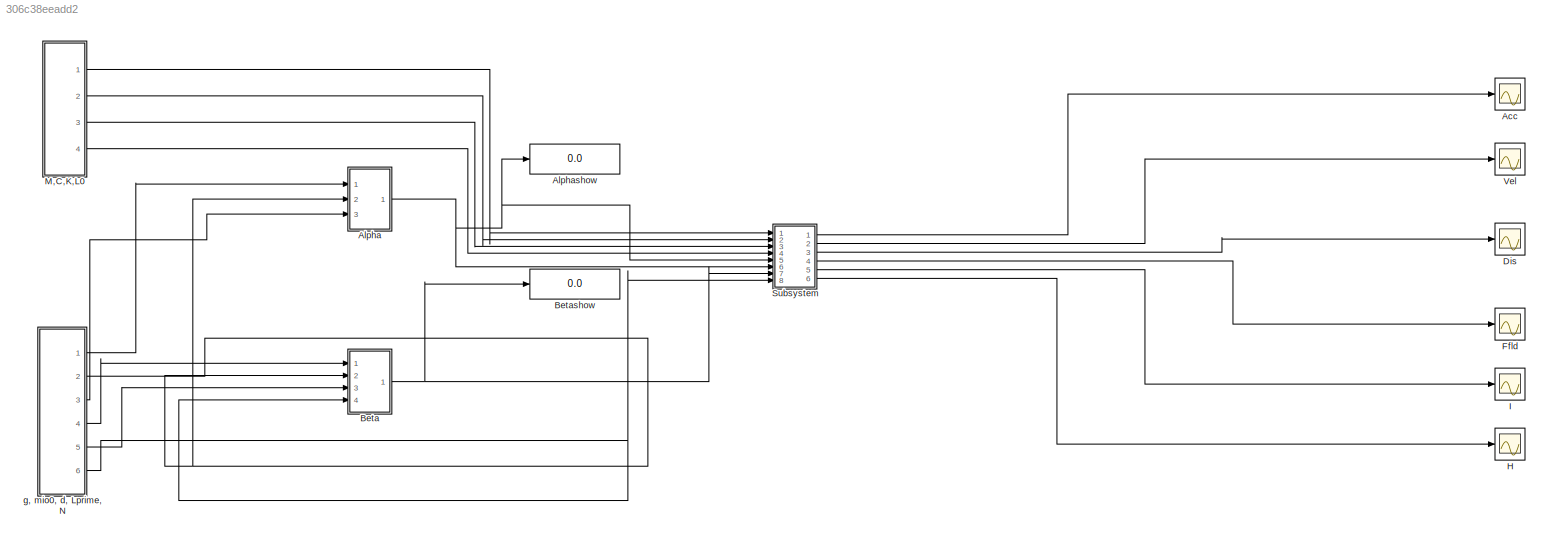
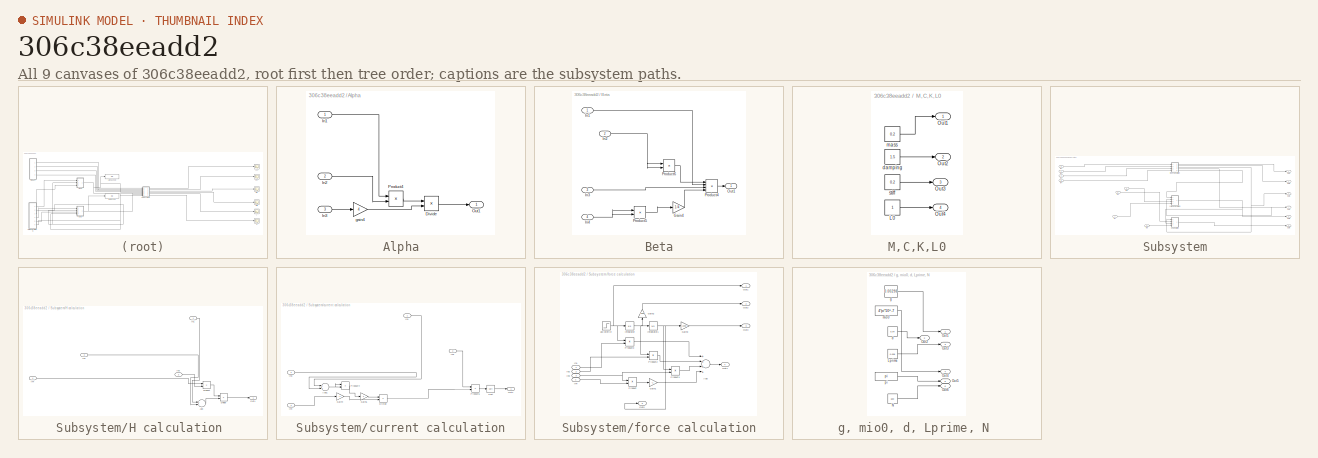
[diagram: thumbnail index - all 9 canvases of the model, root first then tree order]
MODEL slx_306c38eeadd2
KIND model
CONFIG AbsTol = auto
CONFIG EnableMultiTasking = off
CONFIG FixedStep = auto
CONFIG MaxStep = auto
CONFIG MinStep = auto
CONFIG RelTol = 1e-3
CONFIG SampleTimeConstraint = Unconstrained
CONFIG Solver = VariableStepAuto
CONFIG SolverName = VariableStepAuto
CONFIG StartTime = 0.0
CONFIG StopTime = 0.2
BLOCK [Scope] Acc
  Floating = off
  NumInputPorts = 1
  Ports = [1]
  ScopeSpecificationString = Simulink.scopes.TimeScopeBlockCfg('CurrentConfiguration', extmgr.ConfigurationSet(extmgr.Configuration('Core','General UI',true),extmgr.Configuration('Core','Source UI',true),extmgr.Configuration('Sources','WiredSimulink',true,'DataLoggingVariableName','ScopeData2'),extmgr.Configuration('Visuals','Time Domain',true,'SerializedDisplays',{struct('MinYLimReal','-1.25','MaxYLimReal','1.25','YLabelReal...<+1360ch>
BLOCK [SubSystem] Alpha
  Ports = [3, 1]
  RequestExecContextInheritance = off
BLOCK [Product] Alpha/Divide
  InputSameDT = off
  Inputs = */
  OutDataTypeStr = Inherit: Inherit via internal rule
  Ports = [2, 1]
  RndMeth = Floor
  SaturateOnIntegerOverflow = off
BLOCK [Inport] Alpha/In1
  IconDisplay = Port number
BLOCK [Inport] Alpha/In2
  IconDisplay = Port number
  Port = 2
BLOCK [Inport] Alpha/In3
  IconDisplay = Port number
  Port = 3
BLOCK [Outport] Alpha/Out1
  IconDisplay = Port number
BLOCK [Product] Alpha/Product4
  InputSameDT = off
  OutDataTypeStr = Inherit: Inherit via internal rule
  Ports = [2, 1]
  RndMeth = Floor
  SaturateOnIntegerOverflow = off
BLOCK [Gain] Alpha/gain4 
  Gain = 4
  OutDataTypeStr = Inherit: Inherit via internal rule
  ParamDataTypeStr = Inherit: Inherit via internal rule
  SaturateOnIntegerOverflow = off
BLOCK [Display] Alphashow
  Decimation = 1
  Ports = [1]
BLOCK [SubSystem] Beta
  Ports = [4, 1]
  RequestExecContextInheritance = off
BLOCK [Gain] Beta/Gain4
  Gain = 1/4
  OutDataTypeStr = Inherit: Inherit via internal rule
  ParamDataTypeStr = Inherit: Inherit via internal rule
  SaturateOnIntegerOverflow = off
BLOCK [Inport] Beta/In1
  IconDisplay = Port number
BLOCK [Inport] Beta/In2
  IconDisplay = Port number
  Port = 2
BLOCK [Inport] Beta/In3
  IconDisplay = Port number
  Port = 3
BLOCK [Inport] Beta/In4
  IconDisplay = Port number
  Port = 4
BLOCK [Outport] Beta/Out1
  IconDisplay = Port number
BLOCK [Product] Beta/Product4
  InputSameDT = off
  Inputs = 4
  OutDataTypeStr = Inherit: Inherit via internal rule
  Ports = [4, 1]
  RndMeth = Floor
  SaturateOnIntegerOverflow = off
BLOCK [Product] Beta/Product5
  InputSameDT = off
  OutDataTypeStr = Inherit: Inherit via internal rule
  Ports = [2, 1]
  RndMeth = Floor
  SaturateOnIntegerOverflow = off
BLOCK [Product] Beta/Product6
  InputSameDT = off
  OutDataTypeStr = Inherit: Inherit via internal rule
  Ports = [2, 1]
  RndMeth = Floor
  SaturateOnIntegerOverflow = off
BLOCK [Display] Betashow
  Decimation = 1
  Ports = [1]
BLOCK [Scope] Dis 
  Floating = off
  NumInputPorts = 1
  Ports = [1]
  ScopeSpecificationString = Simulink.scopes.TimeScopeBlockCfg('CurrentConfiguration', extmgr.ConfigurationSet(extmgr.Configuration('Core','General UI',true),extmgr.Configuration('Core','Source UI',true),extmgr.Configuration('Sources','WiredSimulink',true),extmgr.Configuration('Visuals','Time Domain',true,'SerializedDisplays',{struct('MinYLimReal','-1.25','MaxYLimReal','11.25','YLabelReal','','MinYLimMag','0.00000','MaxYLimMa...<+1325ch>
BLOCK [Scope] Ffld
  Floating = off
  NumInputPorts = 1
  Ports = [1]
  ScopeSpecificationString = Simulink.scopes.TimeScopeBlockCfg('CurrentConfiguration', extmgr.ConfigurationSet(extmgr.Configuration('Core','General UI',true),extmgr.Configuration('Core','Source UI',true),extmgr.Configuration('Sources','WiredSimulink',true,'DataLoggingVariableName','ScopeData3'),extmgr.Configuration('Visuals','Time Domain',true,'SerializedDisplays',{struct('MinYLimReal','-0.61762','MaxYLimReal','0.06862','YLab...<+1721ch>
BLOCK [Scope] H
  Floating = off
  NumInputPorts = 1
  Ports = [1]
  ScopeSpecificationString = Simulink.scopes.TimeScopeBlockCfg('CurrentConfiguration', extmgr.ConfigurationSet(extmgr.Configuration('Core','General UI',true),extmgr.Configuration('Core','Source UI',true),extmgr.Configuration('Sources','WiredSimulink',true,'DataLoggingVariableName','ScopeData5'),extmgr.Configuration('Visuals','Time Domain',true,'SerializedDisplays',{struct('MinYLimReal','-109.69256','MaxYLimReal','987.23489','...<+1416ch>
BLOCK [Scope] I
  Floating = off
  NumInputPorts = 1
  Ports = [1]
  ScopeSpecificationString = Simulink.scopes.TimeScopeBlockCfg('CurrentConfiguration', extmgr.ConfigurationSet(extmgr.Configuration('Core','General UI',true),extmgr.Configuration('Core','Source UI',true),extmgr.Configuration('Sources','WiredSimulink',true,'DataLoggingVariableName','ScopeData4'),extmgr.Configuration('Visuals','Time Domain',true,'SerializedDisplays',{struct('MinYLimReal','-0.06563','MaxYLimReal','0.59065','YLab...<+1914ch>
BLOCK [SubSystem] M,C,K,L0
  Ports = [0, 4]
  RequestExecContextInheritance = off
BLOCK [Constant] M,C,K,L0/L0
BLOCK [Outport] M,C,K,L0/Out1
  IconDisplay = Port number
BLOCK [Outport] M,C,K,L0/Out2
  IconDisplay = Port number
  Port = 2
BLOCK [Outport] M,C,K,L0/Out3
  IconDisplay = Port number
  Port = 3
BLOCK [Outport] M,C,K,L0/Out4
  IconDisplay = Port number
  Port = 4
BLOCK [Constant] M,C,K,L0/damping
  Value = 1.5
BLOCK [Constant] M,C,K,L0/mass
  Value = 0.2
BLOCK [Constant] M,C,K,L0/stiff
  Value = 0.2
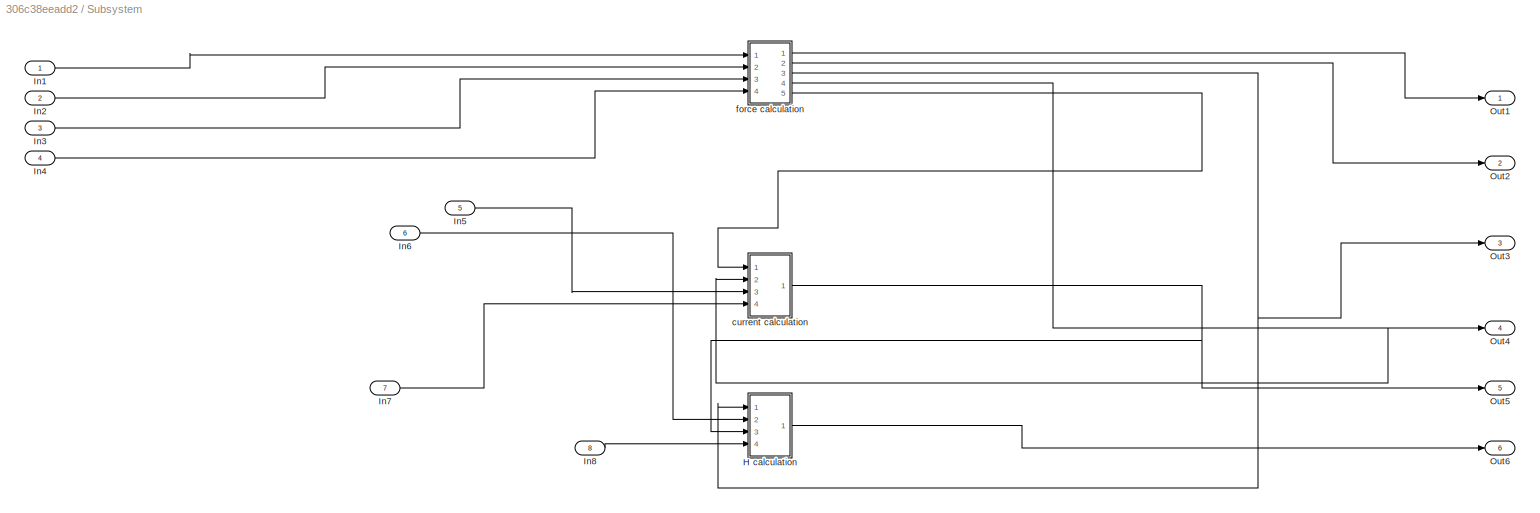
BLOCK [SubSystem] Subsystem
  Ports = [8, 6]
  RequestExecContextInheritance = off
BLOCK [SubSystem] Subsystem/H calculation 
  Ports = [4, 1]
  RequestExecContextInheritance = off
BLOCK [Sum] Subsystem/H calculation /Add
  InputSameDT = off
  OutDataTypeStr = Inherit: Inherit via internal rule
  Ports = [2, 1]
  SaturateOnIntegerOverflow = off
BLOCK [Product] Subsystem/H calculation /Divide
  InputSameDT = off
  Inputs = */
  OutDataTypeStr = Inherit: Inherit via internal rule
  Ports = [2, 1]
  RndMeth = Floor
  SaturateOnIntegerOverflow = off
BLOCK [Inport] Subsystem/H calculation /In1
  IconDisplay = Port number
BLOCK [Inport] Subsystem/H calculation /In2
  IconDisplay = Port number
  Port = 2
BLOCK [Inport] Subsystem/H calculation /In3
  IconDisplay = Port number
  Port = 3
BLOCK [Inport] Subsystem/H calculation /In4
  IconDisplay = Port number
  Port = 4
BLOCK [Outport] Subsystem/H calculation /Out1
  IconDisplay = Port number
BLOCK [Product] Subsystem/H calculation /Product
  InputSameDT = off
  OutDataTypeStr = Inherit: Inherit via internal rule
  Ports = [2, 1]
  RndMeth = Floor
  SaturateOnIntegerOverflow = off
BLOCK [Inport] Subsystem/In1
  IconDisplay = Port number
BLOCK [Inport] Subsystem/In2
  IconDisplay = Port number
  Port = 2
BLOCK [Inport] Subsystem/In3
  IconDisplay = Port number
  Port = 3
BLOCK [Inport] Subsystem/In4
  IconDisplay = Port number
  Port = 4
BLOCK [Inport] Subsystem/In5
  IconDisplay = Port number
  Port = 5
BLOCK [Inport] Subsystem/In6
  IconDisplay = Port number
  Port = 6
BLOCK [Inport] Subsystem/In7
  IconDisplay = Port number
  Port = 7
BLOCK [Inport] Subsystem/In8
  IconDisplay = Port number
  Port = 8
BLOCK [Outport] Subsystem/Out1
  IconDisplay = Port number
BLOCK [Outport] Subsystem/Out2
  IconDisplay = Port number
  Port = 2
BLOCK [Outport] Subsystem/Out3
  IconDisplay = Port number
  Port = 3
BLOCK [Outport] Subsystem/Out4
  IconDisplay = Port number
  Port = 4
BLOCK [Outport] Subsystem/Out5
  IconDisplay = Port number
  Port = 5
BLOCK [Outport] Subsystem/Out6
  IconDisplay = Port number
  Port = 6
BLOCK [SubSystem] Subsystem/current calculation
  Ports = [4, 1]
  RequestExecContextInheritance = off
BLOCK [Sum] Subsystem/current calculation/Add1
  InputSameDT = off
  OutDataTypeStr = Inherit: Inherit via internal rule
  Ports = [2, 1]
  SaturateOnIntegerOverflow = off
BLOCK [Product] Subsystem/current calculation/Divide
  InputSameDT = off
  Inputs = */
  OutDataTypeStr = Inherit: Inherit via internal rule
  Ports = [2, 1]
  RndMeth = Floor
  SaturateOnIntegerOverflow = off
BLOCK [Gain] Subsystem/current calculation/Gain4
  Gain = -1
  OutDataTypeStr = Inherit: Inherit via internal rule
  ParamDataTypeStr = Inherit: Inherit via internal rule
  SaturateOnIntegerOverflow = off
BLOCK [Gain] Subsystem/current calculation/Gain5
  Gain = 2
  OutDataTypeStr = Inherit: Inherit via internal rule
  ParamDataTypeStr = Inherit: Inherit via internal rule
  SaturateOnIntegerOverflow = off
BLOCK [Inport] Subsystem/current calculation/In1
  IconDisplay = Port number
BLOCK [Inport] Subsystem/current calculation/In2
  IconDisplay = Port number
  Port = 2
BLOCK [Inport] Subsystem/current calculation/In3
  IconDisplay = Port number
  Port = 3
BLOCK [Inport] Subsystem/current calculation/In4
  IconDisplay = Port number
  Port = 4
BLOCK [Outport] Subsystem/current calculation/Out1
  IconDisplay = Port number
BLOCK [Product] Subsystem/current calculation/Product4
  InputSameDT = off
  OutDataTypeStr = Inherit: Inherit via internal rule
  Ports = [2, 1]
  RndMeth = Floor
  SaturateOnIntegerOverflow = off
BLOCK [Product] Subsystem/current calculation/Product5
  InputSameDT = off
  OutDataTypeStr = Inherit: Inherit via internal rule
  Ports = [2, 1]
  RndMeth = Floor
  SaturateOnIntegerOverflow = off
BLOCK [Sqrt] Subsystem/current calculation/Sqrt
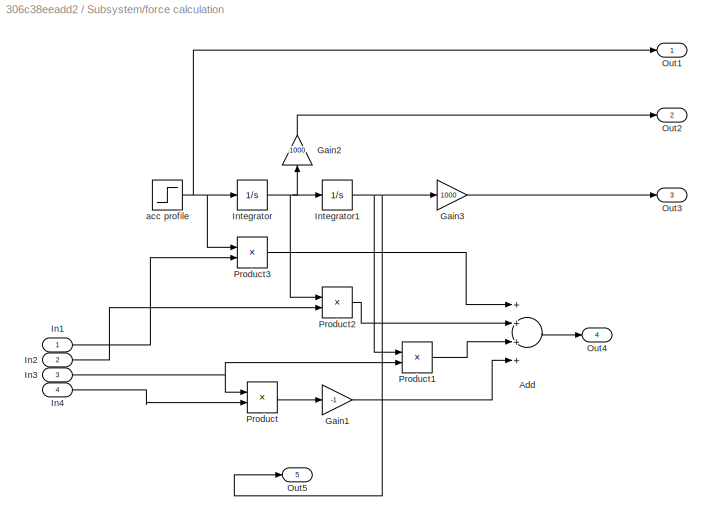
BLOCK [SubSystem] Subsystem/force calculation
  Ports = [4, 5]
  RequestExecContextInheritance = off
BLOCK [Sum] Subsystem/force calculation/Add
  InputSameDT = off
  Inputs = ++++
  OutDataTypeStr = Inherit: Inherit via internal rule
  Ports = [4, 1]
  SaturateOnIntegerOverflow = off
BLOCK [Gain] Subsystem/force calculation/Gain1
  Gain = -1
  OutDataTypeStr = Inherit: Inherit via internal rule
  ParamDataTypeStr = Inherit: Inherit via internal rule
  SaturateOnIntegerOverflow = off
BLOCK [Gain] Subsystem/force calculation/Gain2
  Gain = 1000
  OutDataTypeStr = Inherit: Inherit via internal rule
  ParamDataTypeStr = Inherit: Inherit via internal rule
  SaturateOnIntegerOverflow = off
BLOCK [Gain] Subsystem/force calculation/Gain3
  Gain = 1000
  OutDataTypeStr = Inherit: Inherit via internal rule
  ParamDataTypeStr = Inherit: Inherit via internal rule
  SaturateOnIntegerOverflow = off
BLOCK [Inport] Subsystem/force calculation/In1
  IconDisplay = Port number
BLOCK [Inport] Subsystem/force calculation/In2
  IconDisplay = Port number
  Port = 2
BLOCK [Inport] Subsystem/force calculation/In3
  IconDisplay = Port number
  Port = 3
BLOCK [Inport] Subsystem/force calculation/In4
  IconDisplay = Port number
  Port = 4
BLOCK [Integrator] Subsystem/force calculation/Integrator
  Ports = [1, 1]
BLOCK [Integrator] Subsystem/force calculation/Integrator1
  InitialCondition = 0.01
  Ports = [1, 1]
BLOCK [Outport] Subsystem/force calculation/Out1
  IconDisplay = Port number
BLOCK [Outport] Subsystem/force calculation/Out2
  IconDisplay = Port number
  Port = 2
BLOCK [Outport] Subsystem/force calculation/Out3
  IconDisplay = Port number
  Port = 3
BLOCK [Outport] Subsystem/force calculation/Out4
  IconDisplay = Port number
  Port = 4
BLOCK [Outport] Subsystem/force calculation/Out5
  IconDisplay = Port number
  Port = 5
BLOCK [Product] Subsystem/force calculation/Product
  InputSameDT = off
  OutDataTypeStr = Inherit: Inherit via internal rule
  Ports = [2, 1]
  RndMeth = Floor
  SaturateOnIntegerOverflow = off
BLOCK [Product] Subsystem/force calculation/Product1
  InputSameDT = off
  OutDataTypeStr = Inherit: Inherit via internal rule
  Ports = [2, 1]
  RndMeth = Floor
  SaturateOnIntegerOverflow = off
BLOCK [Product] Subsystem/force calculation/Product2
  InputSameDT = off
  OutDataTypeStr = Inherit: Inherit via internal rule
  Ports = [2, 1]
  RndMeth = Floor
  SaturateOnIntegerOverflow = off
BLOCK [Product] Subsystem/force calculation/Product3
  InputSameDT = off
  OutDataTypeStr = Inherit: Inherit via internal rule
  Ports = [2, 1]
  RndMeth = Floor
  SaturateOnIntegerOverflow = off
BLOCK [Step] Subsystem/force calculation/acc profile
  Before = -1
  SampleTime = 0
  Time = 0.1
BLOCK [Scope] Vel
  Floating = off
  NumInputPorts = 1
  Ports = [1]
  ScopeSpecificationString = Simulink.scopes.TimeScopeBlockCfg('CurrentConfiguration', extmgr.ConfigurationSet(extmgr.Configuration('Core','General UI',true),extmgr.Configuration('Core','Source UI',true),extmgr.Configuration('Sources','WiredSimulink',true,'DataLoggingVariableName','ScopeData1'),extmgr.Configuration('Visuals','Time Domain',true,'SerializedDisplays',{struct('MinYLimReal','-112.5','MaxYLimReal','12.5','YLabelRea...<+1366ch>
BLOCK [SubSystem] g, mio0, d, Lprime, N 
  Ports = [0, 6]
  RequestExecContextInheritance = off
BLOCK [Constant] g, mio0, d, Lprime, N /Lprime
  Value = 0.008
BLOCK [Constant] g, mio0, d, Lprime, N /N
  Value = 600
BLOCK [Outport] g, mio0, d, Lprime, N /Out1
  IconDisplay = Port number
BLOCK [Outport] g, mio0, d, Lprime, N /Out2
  IconDisplay = Port number
  Port = 2
BLOCK [Outport] g, mio0, d, Lprime, N /Out3
  IconDisplay = Port number
  Port = 3
BLOCK [Outport] g, mio0, d, Lprime, N /Out4
  IconDisplay = Port number
  Port = 4
BLOCK [Outport] g, mio0, d, Lprime, N /Out5
  IconDisplay = Port number
  Port = 5
BLOCK [Outport] g, mio0, d, Lprime, N /Out6
  IconDisplay = Port number
  Port = 6
BLOCK [Constant] g, mio0, d, Lprime, N /d
  Value = 0.04
BLOCK [Constant] g, mio0, d, Lprime, N /g
  Value = 0.00298
BLOCK [Constant] g, mio0, d, Lprime, N /mio0
  Value = 4*pi*10^-7
BLOCK [Constant] g, mio0, d, Lprime, N /pi
  Value = pi
LINE Alpha/Divide:1 -> Alpha/Out1:1
LINE Alpha/In1:1 -> Alpha/Product4:1
LINE Alpha/In2:1 -> Alpha/Product4:2
LINE Alpha/In3:1 -> Alpha/gain4 :1
LINE Alpha/Product4:1 -> Alpha/Divide:1
LINE Alpha/gain4 :1 -> Alpha/Divide:2
NET Alpha:1 -> Alphashow:1, Subsystem:5, Subsystem:6
LINE Beta/Gain4:1 -> Beta/Product4:4
LINE Beta/In1:1 -> Beta/Product4:2
NET Beta/In2:1 -> Beta/Product6:1, Beta/Product6:2
LINE Beta/In3:1 -> Beta/Product4:3
NET Beta/In4:1 -> Beta/Product5:1, Beta/Product5:2
LINE Beta/Product4:1 -> Beta/Out1:1
LINE Beta/Product5:1 -> Beta/Gain4:1
LINE Beta/Product6:1 -> Beta/Product4:1
NET Beta:1 -> Betashow:1, Subsystem:7
LINE M,C,K,L0/L0:1 -> M,C,K,L0/Out4:1
LINE M,C,K,L0/damping:1 -> M,C,K,L0/Out2:1
LINE M,C,K,L0/mass:1 -> M,C,K,L0/Out1:1
LINE M,C,K,L0/stiff:1 -> M,C,K,L0/Out3:1
LINE M,C,K,L0:1 -> Subsystem:1
LINE M,C,K,L0:2 -> Subsystem:2
LINE M,C,K,L0:3 -> Subsystem:3
LINE M,C,K,L0:4 -> Subsystem:4
LINE Subsystem/H calculation /Add:1 -> Subsystem/H calculation /Divide:2
LINE Subsystem/H calculation /Divide:1 -> Subsystem/H calculation /Out1:1
LINE Subsystem/H calculation /In1:1 -> Subsystem/H calculation /Add:1
LINE Subsystem/H calculation /In2:1 -> Subsystem/H calculation /Add:2
LINE Subsystem/H calculation /In3:1 -> Subsystem/H calculation /Product:2
LINE Subsystem/H calculation /In4:1 -> Subsystem/H calculation /Product:1
LINE Subsystem/H calculation /Product:1 -> Subsystem/H calculation /Divide:1
LINE Subsystem/H calculation :1 -> Subsystem/Out6:1
LINE Subsystem/In1:1 -> Subsystem/force calculation:1
LINE Subsystem/In2:1 -> Subsystem/force calculation:2
LINE Subsystem/In3:1 -> Subsystem/force calculation:3
LINE Subsystem/In4:1 -> Subsystem/force calculation:4
LINE Subsystem/In5:1 -> Subsystem/current calculation:3
LINE Subsystem/In6:1 -> Subsystem/H calculation :2
LINE Subsystem/In7:1 -> Subsystem/current calculation:4
LINE Subsystem/In8:1 -> Subsystem/H calculation :4
NET Subsystem/current calculation/Add1:1 -> Subsystem/current calculation/Product4:1, Subsystem/current calculation/Product4:2
LINE Subsystem/current calculation/Divide:1 -> Subsystem/current calculation/Product5:2
LINE Subsystem/current calculation/Gain4:1 -> Subsystem/current calculation/Divide:2
LINE Subsystem/current calculation/Gain5:1 -> Subsystem/current calculation/Divide:1
LINE Subsystem/current calculation/In1:1 -> Subsystem/current calculation/Add1:1
LINE Subsystem/current calculation/In2:1 -> Subsystem/current calculation/Product5:1
LINE Subsystem/current calculation/In3:1 -> Subsystem/current calculation/Add1:2
LINE Subsystem/current calculation/In4:1 -> Subsystem/current calculation/Gain4:1
LINE Subsystem/current calculation/Product4:1 -> Subsystem/current calculation/Gain5:1
LINE Subsystem/current calculation/Product5:1 -> Subsystem/current calculation/Sqrt:1
LINE Subsystem/current calculation/Sqrt:1 -> Subsystem/current calculation/Out1:1
NET Subsystem/current calculation:1 -> Subsystem/H calculation :3, Subsystem/Out5:1
LINE Subsystem/force calculation/Add:1 -> Subsystem/force calculation/Out4:1
LINE Subsystem/force calculation/Gain1:1 -> Subsystem/force calculation/Add:4
LINE Subsystem/force calculation/Gain2:1 -> Subsystem/force calculation/Out2:1
LINE Subsystem/force calculation/Gain3:1 -> Subsystem/force calculation/Out3:1
LINE Subsystem/force calculation/In1:1 -> Subsystem/force calculation/Product3:2
LINE Subsystem/force calculation/In2:1 -> Subsystem/force calculation/Product2:2
NET Subsystem/force calculation/In3:1 -> Subsystem/force calculation/Product1:2, Subsystem/force calculation/Product:1
LINE Subsystem/force calculation/In4:1 -> Subsystem/force calculation/Product:2
NET Subsystem/force calculation/Integrator1:1 -> Subsystem/force calculation/Gain3:1, Subsystem/force calculation/Out5:1, Subsystem/force calculation/Product1:1
NET Subsystem/force calculation/Integrator:1 -> Subsystem/force calculation/Gain2:1, Subsystem/force calculation/Integrator1:1, Subsystem/force calculation/Product2:1
LINE Subsystem/force calculation/Product1:1 -> Subsystem/force calculation/Add:3
LINE Subsystem/force calculation/Product2:1 -> Subsystem/force calculation/Add:2
LINE Subsystem/force calculation/Product3:1 -> Subsystem/force calculation/Add:1
LINE Subsystem/force calculation/Product:1 -> Subsystem/force calculation/Gain1:1
NET Subsystem/force calculation/acc profile:1 -> Subsystem/force calculation/Integrator:1, Subsystem/force calculation/Out1:1, Subsystem/force calculation/Product3:1
LINE Subsystem/force calculation:1 -> Subsystem/Out1:1
LINE Subsystem/force calculation:2 -> Subsystem/Out2:1
NET Subsystem/force calculation:3 -> Subsystem/H calculation :1, Subsystem/Out3:1
NET Subsystem/force calculation:4 -> Subsystem/Out4:1, Subsystem/current calculation:2
LINE Subsystem/force calculation:5 -> Subsystem/current calculation:1
LINE Subsystem:1 -> Acc:1
LINE Subsystem:2 -> Vel:1
LINE Subsystem:3 -> Dis :1
LINE Subsystem:4 -> Ffld:1
LINE Subsystem:5 -> I:1
LINE Subsystem:6 -> H:1
LINE g, mio0, d, Lprime, N /Lprime:1 -> g, mio0, d, Lprime, N /Out3:1
LINE g, mio0, d, Lprime, N /N:1 -> g, mio0, d, Lprime, N /Out6:1
LINE g, mio0, d, Lprime, N /d:1 -> g, mio0, d, Lprime, N /Out2:1
LINE g, mio0, d, Lprime, N /g:1 -> g, mio0, d, Lprime, N /Out1:1
LINE g, mio0, d, Lprime, N /mio0:1 -> g, mio0, d, Lprime, N /Out4:1
LINE g, mio0, d, Lprime, N /pi:1 -> g, mio0, d, Lprime, N /Out5:1
LINE g, mio0, d, Lprime, N :1 -> Alpha:1
NET g, mio0, d, Lprime, N :2 -> Alpha:2, Beta:2
LINE g, mio0, d, Lprime, N :3 -> Alpha:3
LINE g, mio0, d, Lprime, N :4 -> Beta:1
LINE g, mio0, d, Lprime, N :5 -> Beta:3
NET g, mio0, d, Lprime, N :6 -> Beta:4, Subsystem:8
note: NET lines group one-source signal fan-out (src -> all destinations, sorted); 1:1 wires keep LINE
